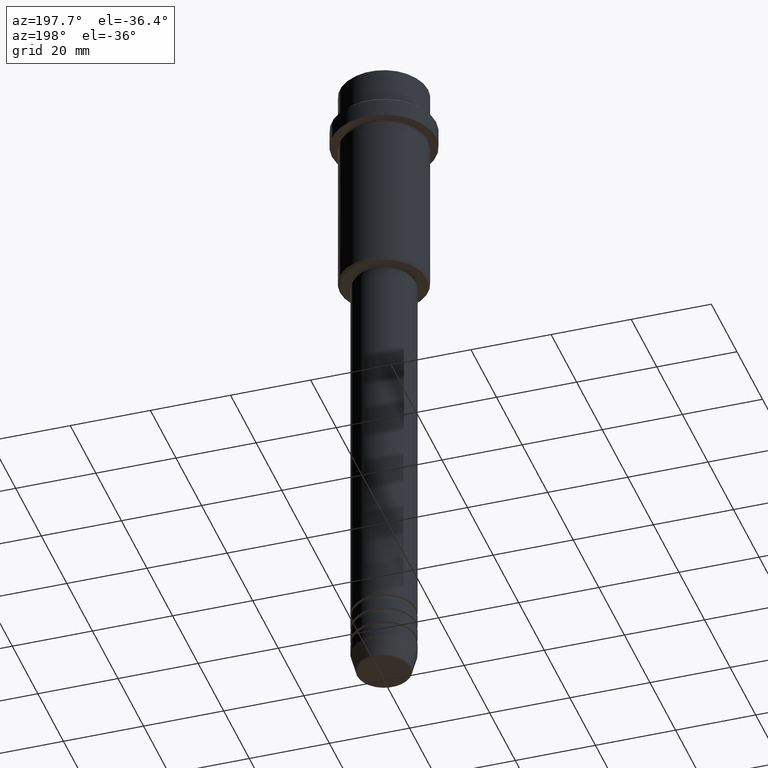
[diagram: clean part render]
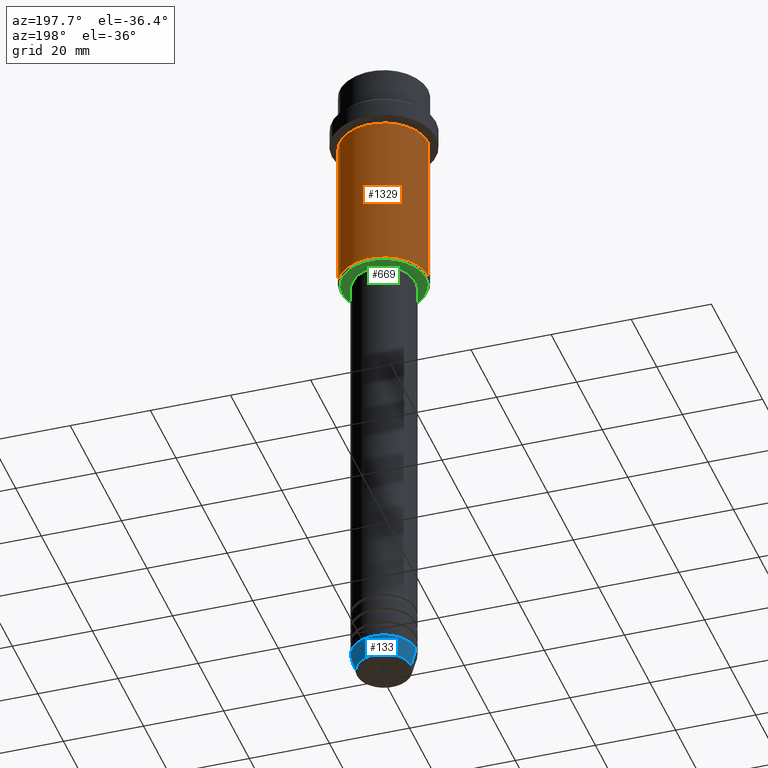
[diagram: same view with three faces highlighted in distinct colors, each labeled with its STEP entity id]
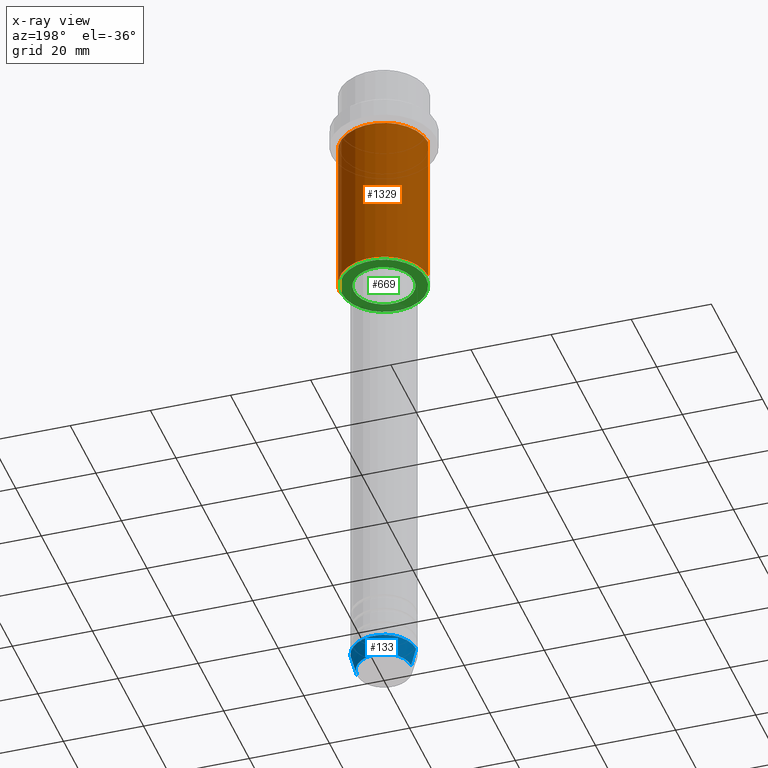
[diagram: x-ray of the same camera — body ghosted, the three highlighted faces saturated]
A machine part, auxiliary view with three faces highlighted in distinct colors.
The next image is the same camera in x-ray (body ghosted, the three faces saturated) — at least one of them is partly hidden behind the body in this view.
Their STEP definitions:

[orange] entity #1329 — the highlighted cylindrical surface (partial cylindrical patch) has radius 11 mm, axis along (-0, -0, 1).
#67 = CARTESIAN_POINT ( 'NONE',  ( 0.000000000000000000, 0.000000000000000000, -55.50000000000002132 ) ) ;
#137 = ORIENTED_EDGE ( 'NONE', *, *, #553, .F. ) ;
#168 = EDGE_CURVE ( 'NONE', #456, #1275, #538, .T. ) ;
#180 = EDGE_LOOP ( 'NONE', ( #375, #727, #874, #137 ) ) ;
#298 = VECTOR ( 'NONE', #1236, 1000.000000000000000 ) ;
#365 = CARTESIAN_POINT ( 'NONE',  ( 10.99999999999998757, 0.000000000000000000, 0.000000000000000000 ) ) ;
#375 = ORIENTED_EDGE ( 'NONE', *, *, #168, .T. ) ;
#416 = CARTESIAN_POINT ( 'NONE',  ( -10.99999999999998757, 1.347111479062086827E-15, 0.000000000000000000 ) ) ;
#419 = CARTESIAN_POINT ( 'NONE',  ( 0.000000000000000000, 0.000000000000000000, 0.000000000000000000 ) ) ;
#445 = VECTOR ( 'NONE', #1411, 1000.000000000000000 ) ;
#456 = VERTEX_POINT ( 'NONE', #668 ) ;
#470 = CARTESIAN_POINT ( 'NONE',  ( 0.000000000000000000, 0.000000000000000000, -16.00000000000000355 ) ) ;
#538 = CIRCLE ( 'NONE', #1169, 10.99999999999998757 ) ;
#542 = DIRECTION ( 'NONE',  ( -0.000000000000000000, -0.000000000000000000, 1.000000000000000000 ) ) ;
#553 = EDGE_CURVE ( 'NONE', #456, #719, #803, .T. ) ;
#568 = AXIS2_PLACEMENT_3D ( 'NONE', #419, #542, #1401 ) ;
#623 = CARTESIAN_POINT ( 'NONE',  ( -10.99999999999998757, 1.347111479062086827E-15, -55.50000000000002132 ) ) ;
#632 = FACE_OUTER_BOUND ( 'NONE', #180, .T. ) ;
#668 = CARTESIAN_POINT ( 'NONE',  ( 10.99999999999998757, 0.000000000000000000, -55.50000000000002132 ) ) ;
#697 = DIRECTION ( 'NONE',  ( -0.000000000000000000, -0.000000000000000000, 1.000000000000000000 ) ) ;
#719 = VERTEX_POINT ( 'NONE', #1403 ) ;
#727 = ORIENTED_EDGE ( 'NONE', *, *, #1364, .T. ) ;
#803 = LINE ( 'NONE', #365, #298 ) ;
#804 = CARTESIAN_POINT ( 'NONE',  ( -10.99999999999997158, 1.347111479062085841E-15, -16.00000000000000355 ) ) ;
#861 = LINE ( 'NONE', #416, #445 ) ;
#874 = ORIENTED_EDGE ( 'NONE', *, *, #1099, .F. ) ;
#888 = DIRECTION ( 'NONE',  ( -0.000000000000000000, -0.000000000000000000, 1.000000000000000000 ) ) ;
#982 = DIRECTION ( 'NONE',  ( 1.000000000000000000, 0.000000000000000000, 0.000000000000000000 ) ) ;
#1042 = DIRECTION ( 'NONE',  ( -1.000000000000000000, 0.000000000000000000, 0.000000000000000000 ) ) ;
#1099 = EDGE_CURVE ( 'NONE', #719, #1241, #1394, .T. ) ;
#1159 = AXIS2_PLACEMENT_3D ( 'NONE', #470, #888, #982 ) ;
#1169 = AXIS2_PLACEMENT_3D ( 'NONE', #67, #697, #1042 ) ;
#1236 = DIRECTION ( 'NONE',  ( -0.000000000000000000, -0.000000000000000000, 1.000000000000000000 ) ) ;
#1241 = VERTEX_POINT ( 'NONE', #804 ) ;
#1275 = VERTEX_POINT ( 'NONE', #623 ) ;
#1280 = CYLINDRICAL_SURFACE ( 'NONE', #568, 10.99999999999998757 ) ;
#1329 = ADVANCED_FACE ( 'NONE', ( #632 ), #1280, .T. ) ;
#1364 = EDGE_CURVE ( 'NONE', #1275, #1241, #861, .T. ) ;
#1394 = CIRCLE ( 'NONE', #1159, 10.99999999999997158 ) ;
#1401 = DIRECTION ( 'NONE',  ( 1.000000000000000000, 0.000000000000000000, 0.000000000000000000 ) ) ;
#1403 = CARTESIAN_POINT ( 'NONE',  ( 10.99999999999997158, 0.000000000000000000, -16.00000000000000355 ) ) ;
#1411 = DIRECTION ( 'NONE',  ( -0.000000000000000000, -0.000000000000000000, 1.000000000000000000 ) ) ;

[blue] entity #133 — the highlighted conical surface has half-angle 15 deg.
#65 = DIRECTION ( 'NONE',  ( -0.000000000000000000, -0.000000000000000000, 1.000000000000000000 ) ) ;
#113 = CIRCLE ( 'NONE', #638, 8.000000000000000000 ) ;
#133 = ADVANCED_FACE ( 'NONE', ( #367 ), #700, .T. ) ;
#209 = CARTESIAN_POINT ( 'NONE',  ( -8.000000000000000000, 9.797174393178825657E-16, -165.0000000000000000 ) ) ;
#234 = EDGE_CURVE ( 'NONE', #1404, #817, #1069, .T. ) ;
#250 = EDGE_LOOP ( 'NONE', ( #433, #696, #613, #816 ) ) ;
#264 = DIRECTION ( 'NONE',  ( -0.000000000000000000, -0.000000000000000000, 1.000000000000000000 ) ) ;
#328 = EDGE_CURVE ( 'NONE', #743, #420, #463, .T. ) ;
#362 = CARTESIAN_POINT ( 'NONE',  ( 0.000000000000000000, 0.000000000000000000, -169.6294095225512706 ) ) ;
#367 = FACE_OUTER_BOUND ( 'NONE', #250, .T. ) ;
#420 = VERTEX_POINT ( 'NONE', #671 ) ;
#433 = ORIENTED_EDGE ( 'NONE', *, *, #1115, .T. ) ;
#463 = LINE ( 'NONE', #887, #562 ) ;
#524 = CIRCLE ( 'NONE', #1315, 6.759553456999433330 ) ;
#562 = VECTOR ( 'NONE', #778, 1000.000000000000000 ) ;
#613 = ORIENTED_EDGE ( 'NONE', *, *, #688, .F. ) ;
#638 = AXIS2_PLACEMENT_3D ( 'NONE', #717, #65, #1397 ) ;
#641 = CARTESIAN_POINT ( 'NONE',  ( -6.759553456999433330, 9.037619948979304241E-16, -169.6294095225512706 ) ) ;
#671 = CARTESIAN_POINT ( 'NONE',  ( 8.000000000000000000, 0.000000000000000000, -165.0000000000000000 ) ) ;
#688 = EDGE_CURVE ( 'NONE', #420, #817, #113, .T. ) ;
#696 = ORIENTED_EDGE ( 'NONE', *, *, #234, .T. ) ;
#700 = CONICAL_SURFACE ( 'NONE', #1267, 8.000000000000000000, 0.2617993877991500740 ) ;
#717 = CARTESIAN_POINT ( 'NONE',  ( 0.000000000000000000, 0.000000000000000000, -165.0000000000000000 ) ) ;
#743 = VERTEX_POINT ( 'NONE', #974 ) ;
#776 = CARTESIAN_POINT ( 'NONE',  ( -8.000000000000000000, 9.797174393178825657E-16, -165.0000000000000000 ) ) ;
#778 = DIRECTION ( 'NONE',  ( 0.2588190451025213501, 0.000000000000000000, 0.9659258262890680902 ) ) ;
#796 = DIRECTION ( 'NONE',  ( 1.000000000000000000, 0.000000000000000000, 0.000000000000000000 ) ) ;
#816 = ORIENTED_EDGE ( 'NONE', *, *, #328, .F. ) ;
#817 = VERTEX_POINT ( 'NONE', #776 ) ;
#887 = CARTESIAN_POINT ( 'NONE',  ( 8.000000000000000000, 0.000000000000000000, -165.0000000000000000 ) ) ;
#974 = CARTESIAN_POINT ( 'NONE',  ( 6.759553456999433330, 0.000000000000000000, -169.6294095225512706 ) ) ;
#1024 = CARTESIAN_POINT ( 'NONE',  ( 0.000000000000000000, 0.000000000000000000, -165.0000000000000000 ) ) ;
#1069 = LINE ( 'NONE', #209, #1211 ) ;
#1115 = EDGE_CURVE ( 'NONE', #743, #1404, #524, .T. ) ;
#1162 = DIRECTION ( 'NONE',  ( -0.2588190451025213501, 3.169619151431772337E-17, 0.9659258262890680902 ) ) ;
#1211 = VECTOR ( 'NONE', #1162, 1000.000000000000000 ) ;
#1267 = AXIS2_PLACEMENT_3D ( 'NONE', #1024, #264, #1381 ) ;
#1315 = AXIS2_PLACEMENT_3D ( 'NONE', #362, #1327, #796 ) ;
#1327 = DIRECTION ( 'NONE',  ( -0.000000000000000000, -0.000000000000000000, 1.000000000000000000 ) ) ;
#1381 = DIRECTION ( 'NONE',  ( 1.000000000000000000, 0.000000000000000000, 0.000000000000000000 ) ) ;
#1397 = DIRECTION ( 'NONE',  ( 1.000000000000000000, 0.000000000000000000, 0.000000000000000000 ) ) ;
#1404 = VERTEX_POINT ( 'NONE', #641 ) ;

[green] entity #669 — the highlighted planar face has unit normal (0, 0, -1).
#1 = EDGE_LOOP ( 'NONE', ( #846, #61 ) ) ;
#3 = CARTESIAN_POINT ( 'NONE',  ( 0.000000000000000000, 0.000000000000000000, -55.99999999999997868 ) ) ;
#48 = CARTESIAN_POINT ( 'NONE',  ( -10.50000000000002309, 1.316495309083405209E-15, -55.99999999999997868 ) ) ;
#61 = ORIENTED_EDGE ( 'NONE', *, *, #240, .T. ) ;
#72 = AXIS2_PLACEMENT_3D ( 'NONE', #917, #1380, #814 ) ;
#80 = DIRECTION ( 'NONE',  ( 1.000000000000000000, 0.000000000000000000, 0.000000000000000000 ) ) ;
#91 = ORIENTED_EDGE ( 'NONE', *, *, #1284, .T. ) ;
#94 = CIRCLE ( 'NONE', #596, 7.499999999999963585 ) ;
#122 = DIRECTION ( 'NONE',  ( 1.000000000000000000, 0.000000000000000000, 0.000000000000000000 ) ) ;
#174 = CARTESIAN_POINT ( 'NONE',  ( 7.499999999999963585, 0.000000000000000000, -55.99999999999997868 ) ) ;
#240 = EDGE_CURVE ( 'NONE', #543, #418, #616, .T. ) ;
#268 = AXIS2_PLACEMENT_3D ( 'NONE', #3, #301, #839 ) ;
#301 = DIRECTION ( 'NONE',  ( 0.000000000000000000, 0.000000000000000000, -1.000000000000000000 ) ) ;
#307 = DIRECTION ( 'NONE',  ( -1.000000000000000000, 0.000000000000000000, 0.000000000000000000 ) ) ;
#418 = VERTEX_POINT ( 'NONE', #1198 ) ;
#508 = FACE_BOUND ( 'NONE', #1138, .T. ) ;
#518 = PLANE ( 'NONE',  #72 ) ;
#543 = VERTEX_POINT ( 'NONE', #48 ) ;
#548 = CARTESIAN_POINT ( 'NONE',  ( 0.000000000000000000, 0.000000000000000000, -55.99999999999997868 ) ) ;
#596 = AXIS2_PLACEMENT_3D ( 'NONE', #601, #1046, #80 ) ;
#601 = CARTESIAN_POINT ( 'NONE',  ( 0.000000000000000000, 0.000000000000000000, -55.99999999999997868 ) ) ;
#611 = FACE_OUTER_BOUND ( 'NONE', #1, .T. ) ;
#616 = CIRCLE ( 'NONE', #782, 10.50000000000002309 ) ;
#642 = CIRCLE ( 'NONE', #268, 10.50000000000002309 ) ;
#667 = DIRECTION ( 'NONE',  ( -0.000000000000000000, -0.000000000000000000, 1.000000000000000000 ) ) ;
#669 = ADVANCED_FACE ( 'NONE', ( #611, #508 ), #518, .T. ) ;
#782 = AXIS2_PLACEMENT_3D ( 'NONE', #1186, #847, #307 ) ;
#784 = EDGE_CURVE ( 'NONE', #1153, #929, #1194, .T. ) ;
#814 = DIRECTION ( 'NONE',  ( -1.000000000000000000, 0.000000000000000000, -0.000000000000000000 ) ) ;
#839 = DIRECTION ( 'NONE',  ( -1.000000000000000000, 0.000000000000000000, 0.000000000000000000 ) ) ;
#846 = ORIENTED_EDGE ( 'NONE', *, *, #1354, .T. ) ;
#847 = DIRECTION ( 'NONE',  ( 0.000000000000000000, 0.000000000000000000, -1.000000000000000000 ) ) ;
#917 = CARTESIAN_POINT ( 'NONE',  ( 0.000000000000000000, 11.00000000000000355, -55.99999999999997868 ) ) ;
#929 = VERTEX_POINT ( 'NONE', #1003 ) ;
#1003 = CARTESIAN_POINT ( 'NONE',  ( -7.499999999999963585, 9.184850993605104557E-16, -55.99999999999997868 ) ) ;
#1031 = ORIENTED_EDGE ( 'NONE', *, *, #784, .T. ) ;
#1046 = DIRECTION ( 'NONE',  ( -0.000000000000000000, -0.000000000000000000, 1.000000000000000000 ) ) ;
#1138 = EDGE_LOOP ( 'NONE', ( #1031, #91 ) ) ;
#1153 = VERTEX_POINT ( 'NONE', #174 ) ;
#1186 = CARTESIAN_POINT ( 'NONE',  ( 0.000000000000000000, 0.000000000000000000, -55.99999999999997868 ) ) ;
#1194 = CIRCLE ( 'NONE', #1271, 7.499999999999963585 ) ;
#1198 = CARTESIAN_POINT ( 'NONE',  ( 10.50000000000002309, 0.000000000000000000, -55.99999999999997868 ) ) ;
#1271 = AXIS2_PLACEMENT_3D ( 'NONE', #548, #667, #122 ) ;
#1284 = EDGE_CURVE ( 'NONE', #929, #1153, #94, .T. ) ;
#1354 = EDGE_CURVE ( 'NONE', #418, #543, #642, .T. ) ;
#1380 = DIRECTION ( 'NONE',  ( 0.000000000000000000, 0.000000000000000000, -1.000000000000000000 ) ) ;